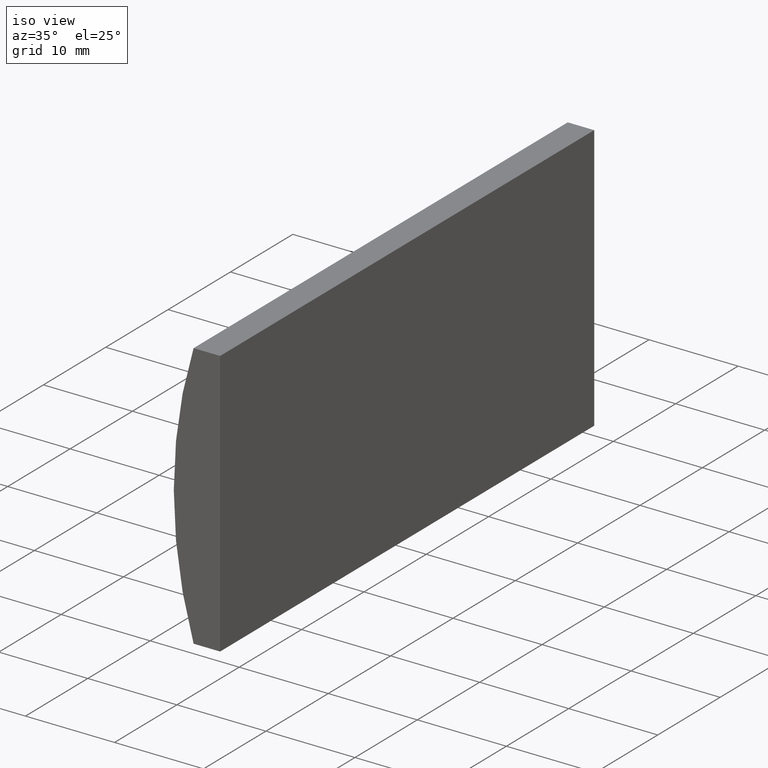
[diagram: clean part render]
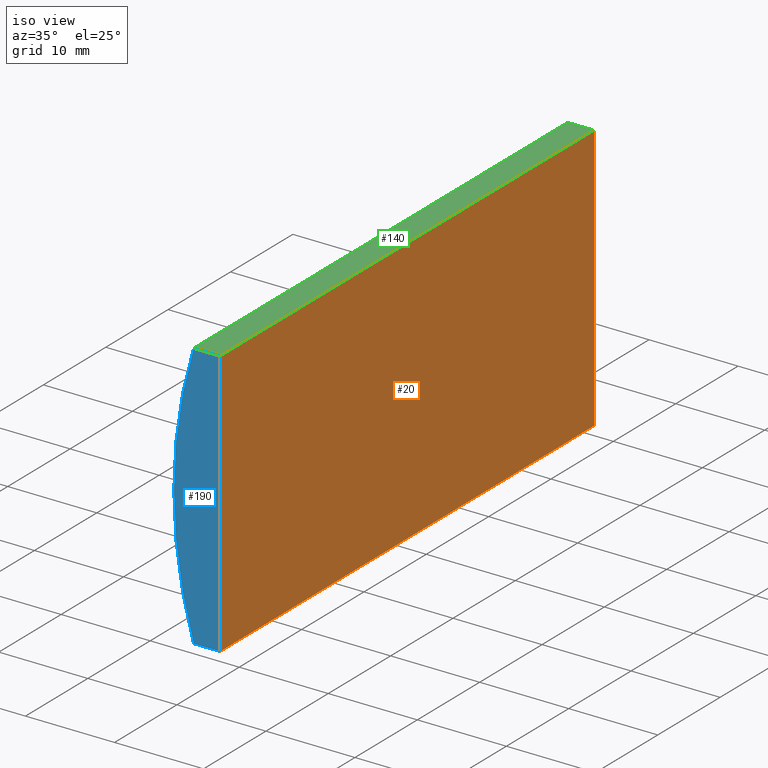
[diagram: same view with three faces highlighted in distinct colors, each labeled with its STEP entity id]
A machine part, iso view with three faces highlighted in distinct colors.
Their STEP definitions:

[orange] entity #20 — the highlighted planar face has unit normal (-1, 0, 0).
#3 = DIRECTION ( 'NONE',  ( -1.000000000000000000, 0.0000000000000000000, 2.312964634635744400E-016 ) ) ;
#16 = LINE ( 'NONE', #202, #131 ) ;
#18 = CARTESIAN_POINT ( 'NONE',  ( -42.14479566514874200, 60.00000000000000000, 15.00000000000000000 ) ) ;
#20 = ADVANCED_FACE ( 'NONE', ( #106 ), #163, .F. ) ;
#23 = AXIS2_PLACEMENT_3D ( 'NONE', #181, #3, #180 ) ;
#25 = ORIENTED_EDGE ( 'NONE', *, *, #44, .F. ) ;
#35 = LINE ( 'NONE', #65, #61 ) ;
#41 = ORIENTED_EDGE ( 'NONE', *, *, #158, .T. ) ;
#44 = EDGE_CURVE ( 'NONE', #160, #194, #89, .T. ) ;
#61 = VECTOR ( 'NONE', #84, 1000.000000000000000 ) ;
#65 = CARTESIAN_POINT ( 'NONE',  ( -42.14479566514874900, 60.00000000000000000, -14.99999999999998200 ) ) ;
#70 = CARTESIAN_POINT ( 'NONE',  ( -42.14479566514874900, 60.00000000000000000, -14.99999999999998200 ) ) ;
#84 = DIRECTION ( 'NONE',  ( -0.0000000000000000000, -1.000000000000000000, -0.0000000000000000000 ) ) ;
#87 = CARTESIAN_POINT ( 'NONE',  ( -42.14479566514874900, 0.0000000000000000000, -14.99999999999998200 ) ) ;
#88 = VERTEX_POINT ( 'NONE', #114 ) ;
#89 = LINE ( 'NONE', #70, #112 ) ;
#99 = VERTEX_POINT ( 'NONE', #153 ) ;
#103 = EDGE_CURVE ( 'NONE', #194, #99, #35, .T. ) ;
#106 = FACE_OUTER_BOUND ( 'NONE', #164, .T. ) ;
#112 = VECTOR ( 'NONE', #141, 1000.000000000000000 ) ;
#114 = CARTESIAN_POINT ( 'NONE',  ( -42.14479566514874200, 0.0000000000000000000, 15.00000000000000000 ) ) ;
#123 = DIRECTION ( 'NONE',  ( -0.0000000000000000000, -1.000000000000000000, -0.0000000000000000000 ) ) ;
#131 = VECTOR ( 'NONE', #123, 1000.000000000000000 ) ;
#132 = VECTOR ( 'NONE', #185, 1000.000000000000000 ) ;
#141 = DIRECTION ( 'NONE',  ( -2.312964634635744400E-016, -0.0000000000000000000, -1.000000000000000000 ) ) ;
#147 = ORIENTED_EDGE ( 'NONE', *, *, #103, .F. ) ;
#153 = CARTESIAN_POINT ( 'NONE',  ( -42.14479566514874900, 0.0000000000000000000, -14.99999999999998200 ) ) ;
#156 = ORIENTED_EDGE ( 'NONE', *, *, #161, .T. ) ;
#158 = EDGE_CURVE ( 'NONE', #160, #88, #16, .T. ) ;
#160 = VERTEX_POINT ( 'NONE', #18 ) ;
#161 = EDGE_CURVE ( 'NONE', #88, #99, #178, .T. ) ;
#163 = PLANE ( 'NONE',  #23 ) ;
#164 = EDGE_LOOP ( 'NONE', ( #156, #147, #25, #41 ) ) ;
#178 = LINE ( 'NONE', #87, #132 ) ;
#180 = DIRECTION ( 'NONE',  ( 2.312964634635744400E-016, 0.0000000000000000000, 1.000000000000000000 ) ) ;
#181 = CARTESIAN_POINT ( 'NONE',  ( -42.14479566514874900, 60.00000000000000000, -14.99999999999998200 ) ) ;
#185 = DIRECTION ( 'NONE',  ( -2.312964634635744400E-016, -0.0000000000000000000, -1.000000000000000000 ) ) ;
#189 = CARTESIAN_POINT ( 'NONE',  ( -42.14479566514874900, 60.00000000000000000, -14.99999999999998200 ) ) ;
#194 = VERTEX_POINT ( 'NONE', #189 ) ;
#202 = CARTESIAN_POINT ( 'NONE',  ( -42.14479566514874200, 60.00000000000000000, 15.00000000000000000 ) ) ;

[blue] entity #190 — the highlighted planar face has unit normal (0, 1, 0).
#1 = DIRECTION ( 'NONE',  ( -1.000000000000000000, -0.0000000000000000000, -5.828738647508747700E-015 ) ) ;
#4 = CARTESIAN_POINT ( 'NONE',  ( -45.12095153845805100, 0.0000000000000000000, -15.00000000000000000 ) ) ;
#6 = VERTEX_POINT ( 'NONE', #4 ) ;
#15 = FACE_OUTER_BOUND ( 'NONE', #192, .T. ) ;
#22 = VECTOR ( 'NONE', #149, 1000.000000000000000 ) ;
#30 = EDGE_CURVE ( 'NONE', #99, #6, #182, .T. ) ;
#33 = EDGE_CURVE ( 'NONE', #6, #125, #79, .T. ) ;
#40 = LINE ( 'NONE', #184, #22 ) ;
#53 = ORIENTED_EDGE ( 'NONE', *, *, #151, .F. ) ;
#58 = ORIENTED_EDGE ( 'NONE', *, *, #33, .F. ) ;
#79 = CIRCLE ( 'NONE', #111, 51.69999999999999600 ) ;
#80 = VECTOR ( 'NONE', #1, 1000.000000000000000 ) ;
#85 = AXIS2_PLACEMENT_3D ( 'NONE', #142, #130, #162 ) ;
#87 = CARTESIAN_POINT ( 'NONE',  ( -42.14479566514874900, 0.0000000000000000000, -14.99999999999998200 ) ) ;
#88 = VERTEX_POINT ( 'NONE', #114 ) ;
#90 = DIRECTION ( 'NONE',  ( 0.0000000000000000000, 0.0000000000000000000, 1.000000000000000000 ) ) ;
#99 = VERTEX_POINT ( 'NONE', #153 ) ;
#100 = ORIENTED_EDGE ( 'NONE', *, *, #30, .F. ) ;
#111 = AXIS2_PLACEMENT_3D ( 'NONE', #126, #128, #90 ) ;
#114 = CARTESIAN_POINT ( 'NONE',  ( -42.14479566514874200, 0.0000000000000000000, 15.00000000000000000 ) ) ;
#125 = VERTEX_POINT ( 'NONE', #198 ) ;
#126 = CARTESIAN_POINT ( 'NONE',  ( 4.355204334851265500, 0.0000000000000000000, 4.286263797015675000E-017 ) ) ;
#128 = DIRECTION ( 'NONE',  ( 0.0000000000000000000, 1.000000000000000000, 0.0000000000000000000 ) ) ;
#130 = DIRECTION ( 'NONE',  ( 0.0000000000000000000, 1.000000000000000000, 0.0000000000000000000 ) ) ;
#132 = VECTOR ( 'NONE', #185, 1000.000000000000000 ) ;
#142 = CARTESIAN_POINT ( 'NONE',  ( 4.355204334851265500, 0.0000000000000000000, 4.286263797015675000E-017 ) ) ;
#149 = DIRECTION ( 'NONE',  ( 1.000000000000000000, 0.0000000000000000000, 0.0000000000000000000 ) ) ;
#151 = EDGE_CURVE ( 'NONE', #125, #88, #40, .T. ) ;
#153 = CARTESIAN_POINT ( 'NONE',  ( -42.14479566514874900, 0.0000000000000000000, -14.99999999999998200 ) ) ;
#161 = EDGE_CURVE ( 'NONE', #88, #99, #178, .T. ) ;
#162 = DIRECTION ( 'NONE',  ( 0.0000000000000000000, -0.0000000000000000000, 1.000000000000000000 ) ) ;
#172 = ORIENTED_EDGE ( 'NONE', *, *, #161, .F. ) ;
#178 = LINE ( 'NONE', #87, #132 ) ;
#182 = LINE ( 'NONE', #187, #80 ) ;
#184 = CARTESIAN_POINT ( 'NONE',  ( -45.12095153845805100, 0.0000000000000000000, 15.00000000000000000 ) ) ;
#185 = DIRECTION ( 'NONE',  ( -2.312964634635744400E-016, -0.0000000000000000000, -1.000000000000000000 ) ) ;
#187 = CARTESIAN_POINT ( 'NONE',  ( -45.12095153845805100, 0.0000000000000000000, -15.00000000000000000 ) ) ;
#190 = ADVANCED_FACE ( 'NONE', ( #15 ), #196, .F. ) ;
#192 = EDGE_LOOP ( 'NONE', ( #58, #100, #172, #53 ) ) ;
#196 = PLANE ( 'NONE',  #85 ) ;
#198 = CARTESIAN_POINT ( 'NONE',  ( -45.12095153845805100, 0.0000000000000000000, 15.00000000000000000 ) ) ;

[green] entity #140 — the highlighted planar face has unit normal (0, 0, -1).
#2 = ORIENTED_EDGE ( 'NONE', *, *, #151, .T. ) ;
#16 = LINE ( 'NONE', #202, #131 ) ;
#17 = DIRECTION ( 'NONE',  ( 1.000000000000000000, 0.0000000000000000000, 0.0000000000000000000 ) ) ;
#18 = CARTESIAN_POINT ( 'NONE',  ( -42.14479566514874200, 60.00000000000000000, 15.00000000000000000 ) ) ;
#22 = VECTOR ( 'NONE', #149, 1000.000000000000000 ) ;
#34 = DIRECTION ( 'NONE',  ( -1.000000000000000000, 0.0000000000000000000, -0.0000000000000000000 ) ) ;
#39 = EDGE_CURVE ( 'NONE', #203, #160, #143, .T. ) ;
#40 = LINE ( 'NONE', #184, #22 ) ;
#50 = PLANE ( 'NONE',  #129 ) ;
#56 = CARTESIAN_POINT ( 'NONE',  ( -45.12095153845805100, 60.00000000000000000, 15.00000000000000000 ) ) ;
#60 = ORIENTED_EDGE ( 'NONE', *, *, #95, .T. ) ;
#81 = ORIENTED_EDGE ( 'NONE', *, *, #158, .F. ) ;
#88 = VERTEX_POINT ( 'NONE', #114 ) ;
#91 = VECTOR ( 'NONE', #17, 1000.000000000000000 ) ;
#95 = EDGE_CURVE ( 'NONE', #203, #125, #105, .T. ) ;
#105 = LINE ( 'NONE', #199, #150 ) ;
#114 = CARTESIAN_POINT ( 'NONE',  ( -42.14479566514874200, 0.0000000000000000000, 15.00000000000000000 ) ) ;
#122 = DIRECTION ( 'NONE',  ( -0.0000000000000000000, -1.000000000000000000, -0.0000000000000000000 ) ) ;
#123 = DIRECTION ( 'NONE',  ( -0.0000000000000000000, -1.000000000000000000, -0.0000000000000000000 ) ) ;
#125 = VERTEX_POINT ( 'NONE', #198 ) ;
#127 = FACE_OUTER_BOUND ( 'NONE', #188, .T. ) ;
#129 = AXIS2_PLACEMENT_3D ( 'NONE', #183, #144, #34 ) ;
#131 = VECTOR ( 'NONE', #123, 1000.000000000000000 ) ;
#136 = ORIENTED_EDGE ( 'NONE', *, *, #39, .F. ) ;
#140 = ADVANCED_FACE ( 'NONE', ( #127 ), #50, .F. ) ;
#143 = LINE ( 'NONE', #56, #91 ) ;
#144 = DIRECTION ( 'NONE',  ( 0.0000000000000000000, 0.0000000000000000000, -1.000000000000000000 ) ) ;
#149 = DIRECTION ( 'NONE',  ( 1.000000000000000000, 0.0000000000000000000, 0.0000000000000000000 ) ) ;
#150 = VECTOR ( 'NONE', #122, 1000.000000000000000 ) ;
#151 = EDGE_CURVE ( 'NONE', #125, #88, #40, .T. ) ;
#158 = EDGE_CURVE ( 'NONE', #160, #88, #16, .T. ) ;
#160 = VERTEX_POINT ( 'NONE', #18 ) ;
#183 = CARTESIAN_POINT ( 'NONE',  ( -45.12095153845805100, 60.00000000000000000, 15.00000000000000000 ) ) ;
#184 = CARTESIAN_POINT ( 'NONE',  ( -45.12095153845805100, 0.0000000000000000000, 15.00000000000000000 ) ) ;
#186 = CARTESIAN_POINT ( 'NONE',  ( -45.12095153845805100, 60.00000000000000000, 15.00000000000000000 ) ) ;
#188 = EDGE_LOOP ( 'NONE', ( #2, #81, #136, #60 ) ) ;
#198 = CARTESIAN_POINT ( 'NONE',  ( -45.12095153845805100, 0.0000000000000000000, 15.00000000000000000 ) ) ;
#199 = CARTESIAN_POINT ( 'NONE',  ( -45.12095153845805100, 60.00000000000000000, 15.00000000000000000 ) ) ;
#202 = CARTESIAN_POINT ( 'NONE',  ( -42.14479566514874200, 60.00000000000000000, 15.00000000000000000 ) ) ;
#203 = VERTEX_POINT ( 'NONE', #186 ) ;